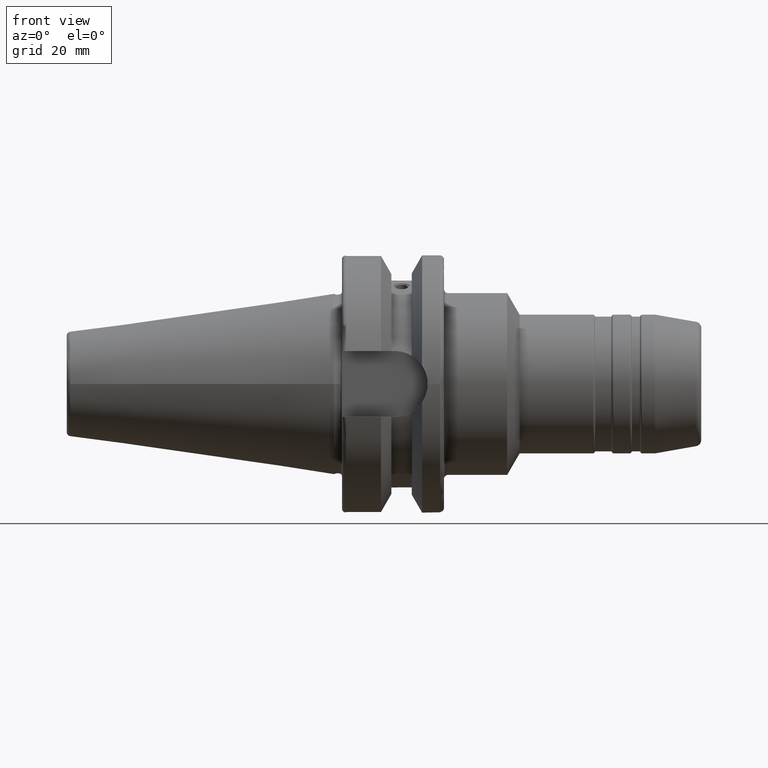
[diagram: clean part render]
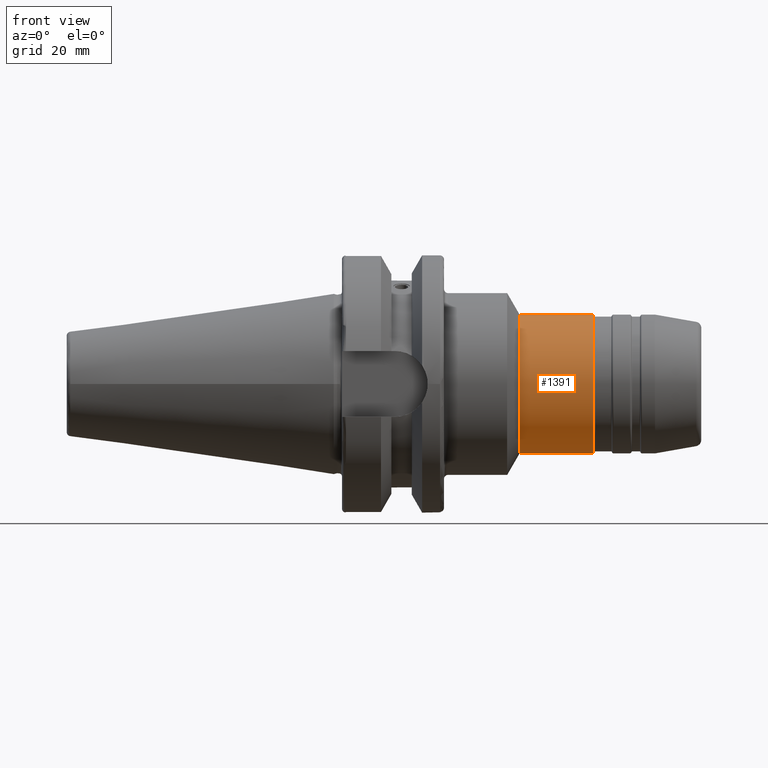
[diagram: same view with one face highlighted and labeled with its STEP entity id]
A machine part, front view. The second image highlights one B-rep face of the part: STEP entity #1391.
In plain terms, the highlighted cylindrical surface (bore or boss wall) has radius 17 mm, axis along (1, 0, 0).
Its self-contained STEP definition (entity closure, byte-faithful):
#127=FACE_OUTER_BOUND('',#216,.T.);
#216=EDGE_LOOP('',(#997,#998,#999,#1000));
#337=LINE('',#2334,#408);
#408=VECTOR('',#1799,17.);
#496=CIRCLE('',#1531,17.);
#497=CIRCLE('',#1533,17.);
#590=VERTEX_POINT('',#2329);
#591=VERTEX_POINT('',#2333);
#744=EDGE_CURVE('',#590,#590,#496,.T.);
#745=EDGE_CURVE('',#590,#591,#337,.T.);
#746=EDGE_CURVE('',#591,#591,#497,.T.);
#997=ORIENTED_EDGE('',*,*,#744,.F.);
#998=ORIENTED_EDGE('',*,*,#745,.T.);
#999=ORIENTED_EDGE('',*,*,#746,.T.);
#1000=ORIENTED_EDGE('',*,*,#745,.F.);
#1345=CYLINDRICAL_SURFACE('',#1532,17.);
#1391=ADVANCED_FACE('',(#127),#1345,.T.);
#1531=AXIS2_PLACEMENT_3D('',#2331,#1795,#1796);
#1532=AXIS2_PLACEMENT_3D('',#2332,#1797,#1798);
#1533=AXIS2_PLACEMENT_3D('',#2335,#1800,#1801);
#1795=DIRECTION('center_axis',(1.,0.,0.));
#1796=DIRECTION('ref_axis',(0.,1.22464679914735E-16,1.));
#1797=DIRECTION('center_axis',(1.,0.,0.));
#1798=DIRECTION('ref_axis',(0.,0.,-1.));
#1799=DIRECTION('',(-1.,0.,0.));
#1800=DIRECTION('center_axis',(1.,0.,0.));
#1801=DIRECTION('ref_axis',(0.,0.,-1.));
#2329=CARTESIAN_POINT('',(63.4803847577293,-2.0818995585505E-15,17.));
#2331=CARTESIAN_POINT('Origin',(63.4803847577293,0.,0.));
#2332=CARTESIAN_POINT('Origin',(54.6056624327026,0.,0.));
#2333=CARTESIAN_POINT('',(45.5,-2.0818995585505E-15,17.));
#2334=CARTESIAN_POINT('',(54.6056624327026,-2.0818995585505E-15,17.));
#2335=CARTESIAN_POINT('Origin',(45.5,0.,0.));